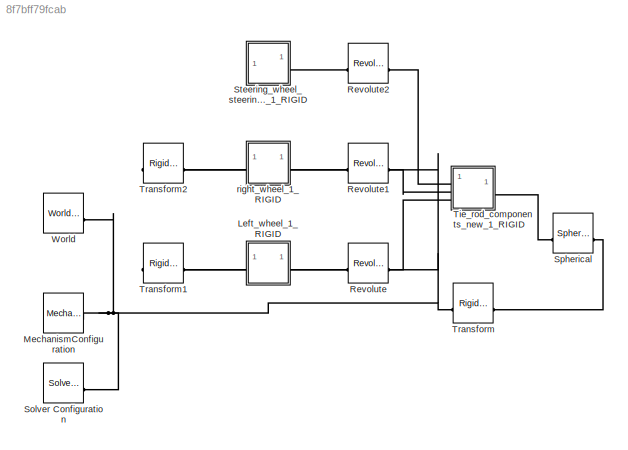
MODEL slx_8f7bff79fcab
KIND model
CONFIG AbsTol = auto
CONFIG EnableMultiTasking = off
CONFIG FixedStep = auto
CONFIG MaxStep = auto
CONFIG MinStep = auto
CONFIG RelTol = 1e-3
CONFIG SampleTimeConstraint = Unconstrained
CONFIG SolverName = VariableStepAuto
CONFIG StartTime = 0.0
CONFIG StopTime = 10.0
WORKSPACE source: external: MATLAB File  (data not in archive)
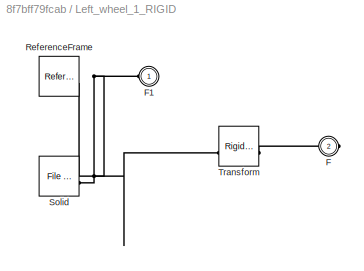
BLOCK [SubSystem] Left_wheel_1_RIGID
BLOCK [PMIOPort] Left_wheel_1_RIGID/F
  Port = 2
  Side = Right
BLOCK [PMIOPort] Left_wheel_1_RIGID/F1
  Side = Left
BLOCK [Reference] Left_wheel_1_RIGID/ReferenceFrame  REF=sm_lib/Frames and
Transforms/Reference
Frame
  SourceBlock = sm_lib/Frames and\nTransforms/Reference\nFrame
  SourceType = Reference\nFrame
BLOCK [Reference] Left_wheel_1_RIGID/Solid  REF=sm_lib/Body Elements/File Solid
  SourceBlock = sm_lib/Body Elements/File Solid
  SourceType = File Solid
BLOCK [Reference] Left_wheel_1_RIGID/Transform  REF=sm_lib/Frames and
Transforms/Rigid
Transform
  SourceBlock = sm_lib/Frames and\nTransforms/Rigid\nTransform
  SourceType = Rigid\nTransform
BLOCK [Reference] MechanismConfiguration  REF=sm_lib/Utilities/Mechanism
Configuration
  SourceBlock = sm_lib/Utilities/Mechanism\nConfiguration
  SourceType = Mechanism\nConfiguration
BLOCK [Reference] Revolute  REF=sm_lib/Joints/Revolute Joint
  SourceBlock = sm_lib/Joints/Revolute Joint
  SourceType = Revolute Joint
BLOCK [Reference] Revolute1  REF=sm_lib/Joints/Revolute Joint
  SourceBlock = sm_lib/Joints/Revolute Joint
  SourceType = Revolute Joint
BLOCK [Reference] Revolute2  REF=sm_lib/Joints/Revolute Joint
  SourceBlock = sm_lib/Joints/Revolute Joint
  SourceType = Revolute Joint
BLOCK [Reference] Solver Configuration  REF=nesl_utility/Solver
Configuration
  SourceBlock = nesl_utility/Solver\nConfiguration
  SourceType = Solver\nConfiguration
BLOCK [Reference] Spherical  REF=sm_lib/Joints/Spherical
Joint
  SourceBlock = sm_lib/Joints/Spherical\nJoint
  SourceType = Spherical\nJoint
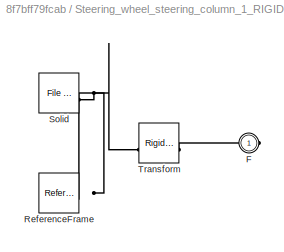
BLOCK [SubSystem] Steering_wheel_steering_column_1_RIGID
BLOCK [PMIOPort] Steering_wheel_steering_column_1_RIGID/F
  Side = Right
BLOCK [Reference] Steering_wheel_steering_column_1_RIGID/ReferenceFrame  REF=sm_lib/Frames and
Transforms/Reference
Frame
  SourceBlock = sm_lib/Frames and\nTransforms/Reference\nFrame
  SourceType = Reference\nFrame
BLOCK [Reference] Steering_wheel_steering_column_1_RIGID/Solid  REF=sm_lib/Body Elements/File Solid
  SourceBlock = sm_lib/Body Elements/File Solid
  SourceType = File Solid
BLOCK [Reference] Steering_wheel_steering_column_1_RIGID/Transform  REF=sm_lib/Frames and
Transforms/Rigid
Transform
  SourceBlock = sm_lib/Frames and\nTransforms/Rigid\nTransform
  SourceType = Rigid\nTransform
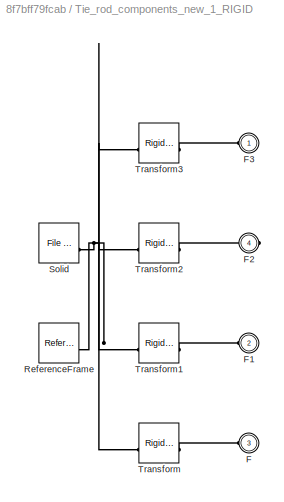
BLOCK [SubSystem] Tie_rod_components_new_1_RIGID
BLOCK [PMIOPort] Tie_rod_components_new_1_RIGID/F
  Port = 3
  Side = Left
BLOCK [PMIOPort] Tie_rod_components_new_1_RIGID/F1
  Port = 2
  Side = Left
BLOCK [PMIOPort] Tie_rod_components_new_1_RIGID/F2
  Port = 4
  Side = Right
BLOCK [PMIOPort] Tie_rod_components_new_1_RIGID/F3
  Side = Left
BLOCK [Reference] Tie_rod_components_new_1_RIGID/ReferenceFrame  REF=sm_lib/Frames and
Transforms/Reference
Frame
  SourceBlock = sm_lib/Frames and\nTransforms/Reference\nFrame
  SourceType = Reference\nFrame
BLOCK [Reference] Tie_rod_components_new_1_RIGID/Solid  REF=sm_lib/Body Elements/File Solid
  SourceBlock = sm_lib/Body Elements/File Solid
  SourceType = File Solid
BLOCK [Reference] Tie_rod_components_new_1_RIGID/Transform  REF=sm_lib/Frames and
Transforms/Rigid
Transform
  SourceBlock = sm_lib/Frames and\nTransforms/Rigid\nTransform
  SourceType = Rigid\nTransform
BLOCK [Reference] Tie_rod_components_new_1_RIGID/Transform1  REF=sm_lib/Frames and
Transforms/Rigid
Transform
  SourceBlock = sm_lib/Frames and\nTransforms/Rigid\nTransform
  SourceType = Rigid\nTransform
BLOCK [Reference] Tie_rod_components_new_1_RIGID/Transform2  REF=sm_lib/Frames and
Transforms/Rigid
Transform
  SourceBlock = sm_lib/Frames and\nTransforms/Rigid\nTransform
  SourceType = Rigid\nTransform
BLOCK [Reference] Tie_rod_components_new_1_RIGID/Transform3  REF=sm_lib/Frames and
Transforms/Rigid
Transform
  SourceBlock = sm_lib/Frames and\nTransforms/Rigid\nTransform
  SourceType = Rigid\nTransform
BLOCK [Reference] Transform  REF=sm_lib/Frames and
Transforms/Rigid
Transform
  SourceBlock = sm_lib/Frames and\nTransforms/Rigid\nTransform
  SourceType = Rigid\nTransform
BLOCK [Reference] Transform1  REF=sm_lib/Frames and
Transforms/Rigid
Transform
  SourceBlock = sm_lib/Frames and\nTransforms/Rigid\nTransform
  SourceType = Rigid\nTransform
BLOCK [Reference] Transform2  REF=sm_lib/Frames and
Transforms/Rigid
Transform
  SourceBlock = sm_lib/Frames and\nTransforms/Rigid\nTransform
  SourceType = Rigid\nTransform
BLOCK [Reference] World  REF=sm_lib/Frames and
Transforms/World Frame
  SourceBlock = sm_lib/Frames and\nTransforms/World Frame
  SourceType = World Frame
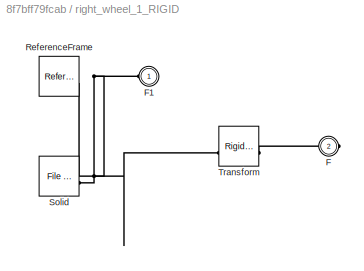
BLOCK [SubSystem] right_wheel_1_RIGID
BLOCK [PMIOPort] right_wheel_1_RIGID/F
  Port = 2
  Side = Right
BLOCK [PMIOPort] right_wheel_1_RIGID/F1
  Side = Left
BLOCK [Reference] right_wheel_1_RIGID/ReferenceFrame  REF=sm_lib/Frames and
Transforms/Reference
Frame
  SourceBlock = sm_lib/Frames and\nTransforms/Reference\nFrame
  SourceType = Reference\nFrame
BLOCK [Reference] right_wheel_1_RIGID/Solid  REF=sm_lib/Body Elements/File Solid
  SourceBlock = sm_lib/Body Elements/File Solid
  SourceType = File Solid
BLOCK [Reference] right_wheel_1_RIGID/Transform  REF=sm_lib/Frames and
Transforms/Rigid
Transform
  SourceBlock = sm_lib/Frames and\nTransforms/Rigid\nTransform
  SourceType = Rigid\nTransform
PNET net1: Left_wheel_1_RIGID/F1:RConn1 -- Left_wheel_1_RIGID/ReferenceFrame:RConn1 -- Left_wheel_1_RIGID/Solid:RConn1 -- Left_wheel_1_RIGID/Transform:LConn1
PLINE Left_wheel_1_RIGID/F:RConn1 -- Left_wheel_1_RIGID/Transform:RConn1
PLINE Left_wheel_1_RIGID:LConn1 -- Transform1:RConn1
PLINE Left_wheel_1_RIGID:RConn1 -- Revolute:LConn1
PNET net2: MechanismConfiguration:RConn1 -- Solver Configuration:RConn1 -- Transform1:LConn1 -- Transform2:LConn1 -- Transform:LConn1 -- World:RConn1
PLINE Revolute1:LConn1 -- right_wheel_1_RIGID:RConn1
PLINE Revolute1:RConn1 -- Tie_rod_components_new_1_RIGID:LConn2
PLINE Revolute2:LConn1 -- Steering_wheel_steering_column_1_RIGID:RConn1
PLINE Revolute2:RConn1 -- Tie_rod_components_new_1_RIGID:LConn1
PLINE Revolute:RConn1 -- Tie_rod_components_new_1_RIGID:LConn3
PLINE Spherical:LConn1 -- Tie_rod_components_new_1_RIGID:RConn1
PLINE Spherical:RConn1 -- Transform:RConn1
PLINE Steering_wheel_steering_column_1_RIGID/F:RConn1 -- Steering_wheel_steering_column_1_RIGID/Transform:RConn1
PNET net3: Steering_wheel_steering_column_1_RIGID/ReferenceFrame:RConn1 -- Steering_wheel_steering_column_1_RIGID/Solid:RConn1 -- Steering_wheel_steering_column_1_RIGID/Transform:LConn1
PLINE Tie_rod_components_new_1_RIGID/F1:RConn1 -- Tie_rod_components_new_1_RIGID/Transform1:RConn1
PLINE Tie_rod_components_new_1_RIGID/F2:RConn1 -- Tie_rod_components_new_1_RIGID/Transform2:RConn1
PLINE Tie_rod_components_new_1_RIGID/F3:RConn1 -- Tie_rod_components_new_1_RIGID/Transform3:RConn1
PLINE Tie_rod_components_new_1_RIGID/F:RConn1 -- Tie_rod_components_new_1_RIGID/Transform:RConn1
PNET net4: Tie_rod_components_new_1_RIGID/ReferenceFrame:RConn1 -- Tie_rod_components_new_1_RIGID/Solid:RConn1 -- Tie_rod_components_new_1_RIGID/Transform1:LConn1 -- Tie_rod_components_new_1_RIGID/Transform2:LConn1 -- Tie_rod_components_new_1_RIGID/Transform3:LConn1 -- Tie_rod_components_new_1_RIGID/Transform:LConn1
PLINE Transform2:RConn1 -- right_wheel_1_RIGID:LConn1
PNET net5: right_wheel_1_RIGID/F1:RConn1 -- right_wheel_1_RIGID/ReferenceFrame:RConn1 -- right_wheel_1_RIGID/Solid:RConn1 -- right_wheel_1_RIGID/Transform:LConn1
PLINE right_wheel_1_RIGID/F:RConn1 -- right_wheel_1_RIGID/Transform:RConn1
note: PNET lines group multi-terminal physical nets as a canonical sorted terminal list (undirected conserving connections); 2-terminal nets keep the pairwise PLINE form
